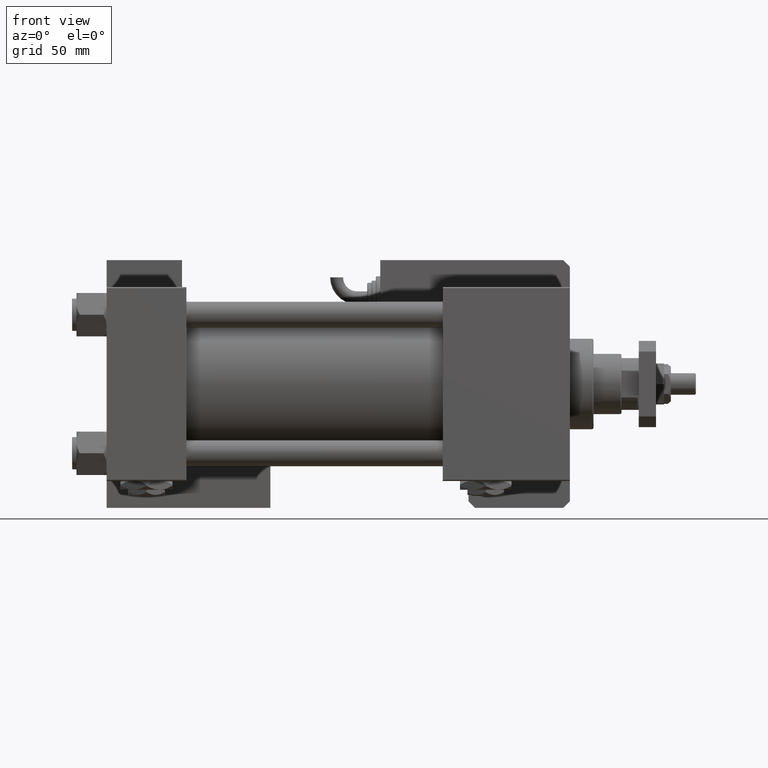
[diagram: clean part render]
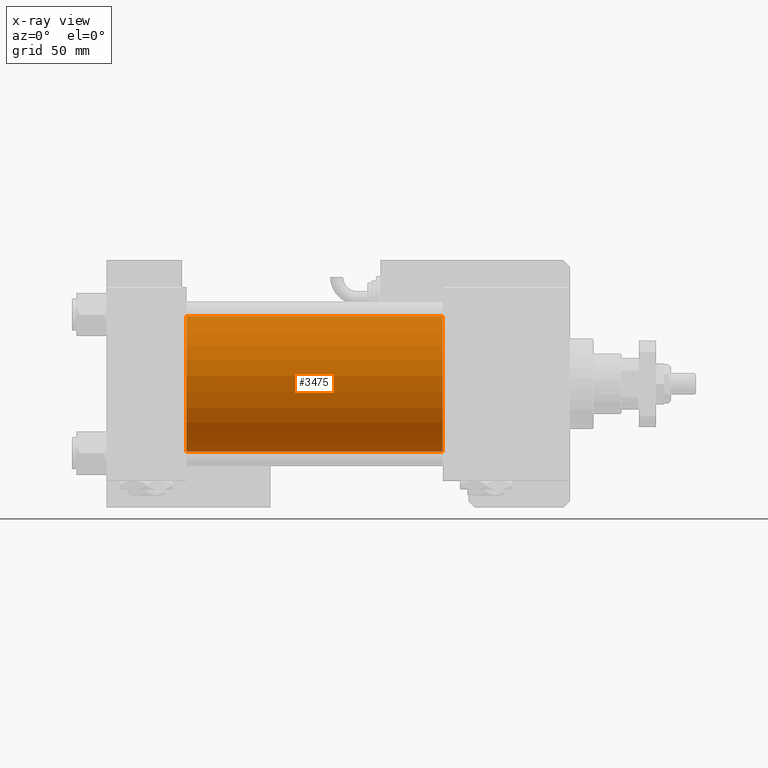
[diagram: x-ray — body ghosted, one internal face saturated and labeled with its STEP entity id]
A machine part, front view, then the same camera in x-ray: the body is ghosted and one INTERNAL B-rep face — a face not visible from any outside direction — is saturated and labeled: STEP entity #3475.
In plain terms, the highlighted cylindrical surface (partial cylindrical patch) has radius 31.5 mm, axis along (-1, -0, -0).
Its self-contained STEP definition (entity closure, byte-faithful):
#3475 = ADVANCED_FACE ( 'NONE', ( #24951 ), #16175, .F. ) ;
#3802 = EDGE_CURVE ( 'NONE', #9897, #43980, #34017, .T. ) ;
#4990 = CARTESIAN_POINT ( 'NONE',  ( 37.00000000000000000, -2.602085213965210642E-15, 0.000000000000000000 ) ) ;
#6591 = CARTESIAN_POINT ( 'NONE',  ( 156.0000000000000000, -2.602085213965210642E-15, 0.000000000000000000 ) ) ;
#9191 = DIRECTION ( 'NONE',  ( -1.000000000000000000, -0.000000000000000000, -0.000000000000000000 ) ) ;
#9672 = CARTESIAN_POINT ( 'NONE',  ( 156.0000000000000000, 1.255552203348951850E-15, -31.50000000000000000 ) ) ;
#9897 = VERTEX_POINT ( 'NONE', #28816 ) ;
#9914 = ORIENTED_EDGE ( 'NONE', *, *, #3802, .F. ) ;
#13292 = CARTESIAN_POINT ( 'NONE',  ( 156.0000000000000000, -2.602085213965210642E-15, 31.50000000000000000 ) ) ;
#14020 = ORIENTED_EDGE ( 'NONE', *, *, #54737, .T. ) ;
#15691 = DIRECTION ( 'NONE',  ( 1.000000000000000000, 0.000000000000000000, 0.000000000000000000 ) ) ;
#16175 = CYLINDRICAL_SURFACE ( 'NONE', #30240, 31.50000000000000000 ) ;
#18078 = CARTESIAN_POINT ( 'NONE',  ( 156.0000000000000000, 1.255552203348951850E-15, -31.50000000000000000 ) ) ;
#19341 = EDGE_LOOP ( 'NONE', ( #14020, #56613, #9914, #54655 ) ) ;
#19977 = DIRECTION ( 'NONE',  ( 0.000000000000000000, 0.000000000000000000, 1.000000000000000000 ) ) ;
#20831 = CARTESIAN_POINT ( 'NONE',  ( 156.0000000000000000, -2.602085213965210642E-15, 0.000000000000000000 ) ) ;
#23135 = DIRECTION ( 'NONE',  ( -1.000000000000000000, -0.000000000000000000, -0.000000000000000000 ) ) ;
#24951 = FACE_OUTER_BOUND ( 'NONE', #19341, .T. ) ;
#26784 = LINE ( 'NONE', #13292, #29903 ) ;
#28816 = CARTESIAN_POINT ( 'NONE',  ( 37.00000000000000000, -2.602085213965210642E-15, 31.50000000000000000 ) ) ;
#28872 = DIRECTION ( 'NONE',  ( 0.000000000000000000, 0.000000000000000000, -1.000000000000000000 ) ) ;
#29903 = VECTOR ( 'NONE', #9191, 1000.000000000000000 ) ;
#30240 = AXIS2_PLACEMENT_3D ( 'NONE', #20831, #42294, #19977 ) ;
#30870 = VERTEX_POINT ( 'NONE', #37329 ) ;
#32135 = AXIS2_PLACEMENT_3D ( 'NONE', #4990, #55131, #54552 ) ;
#34017 = CIRCLE ( 'NONE', #32135, 31.50000000000000000 ) ;
#37329 = CARTESIAN_POINT ( 'NONE',  ( 156.0000000000000000, -2.602085213965210642E-15, 31.50000000000000000 ) ) ;
#38517 = CARTESIAN_POINT ( 'NONE',  ( 37.00000000000000000, 1.255552203348951850E-15, -31.50000000000000000 ) ) ;
#38603 = EDGE_CURVE ( 'NONE', #30870, #9897, #26784, .T. ) ;
#39673 = EDGE_CURVE ( 'NONE', #45690, #43980, #53378, .T. ) ;
#42294 = DIRECTION ( 'NONE',  ( -1.000000000000000000, -0.000000000000000000, -0.000000000000000000 ) ) ;
#43980 = VERTEX_POINT ( 'NONE', #38517 ) ;
#45690 = VERTEX_POINT ( 'NONE', #18078 ) ;
#52971 = AXIS2_PLACEMENT_3D ( 'NONE', #6591, #15691, #28872 ) ;
#53378 = LINE ( 'NONE', #9672, #56154 ) ;
#53908 = CIRCLE ( 'NONE', #52971, 31.50000000000000000 ) ;
#54552 = DIRECTION ( 'NONE',  ( 0.000000000000000000, 0.000000000000000000, -1.000000000000000000 ) ) ;
#54655 = ORIENTED_EDGE ( 'NONE', *, *, #38603, .F. ) ;
#54737 = EDGE_CURVE ( 'NONE', #30870, #45690, #53908, .T. ) ;
#55131 = DIRECTION ( 'NONE',  ( 1.000000000000000000, 0.000000000000000000, 0.000000000000000000 ) ) ;
#56154 = VECTOR ( 'NONE', #23135, 1000.000000000000000 ) ;
#56613 = ORIENTED_EDGE ( 'NONE', *, *, #39673, .T. ) ;